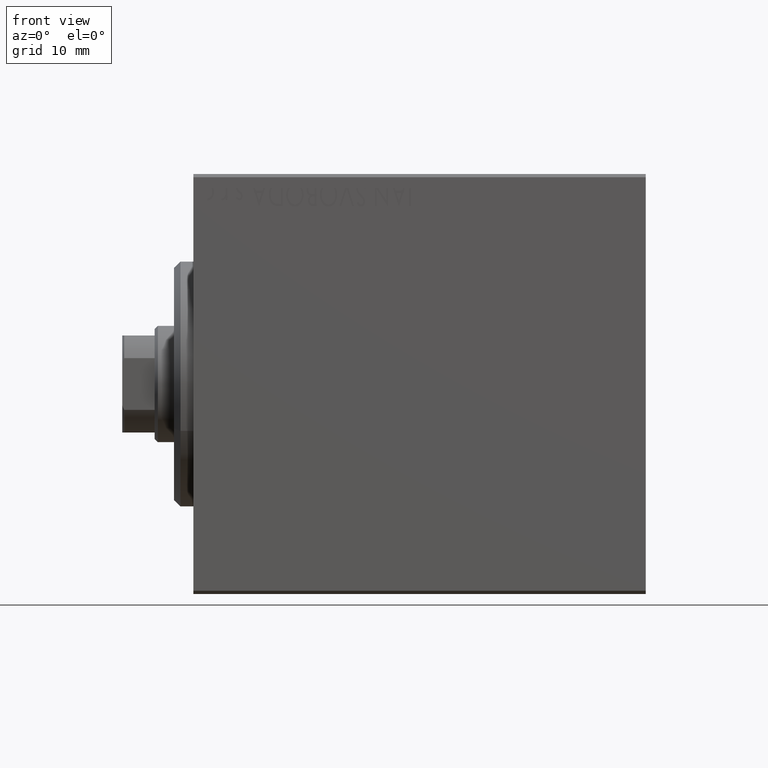
[diagram: clean part render]
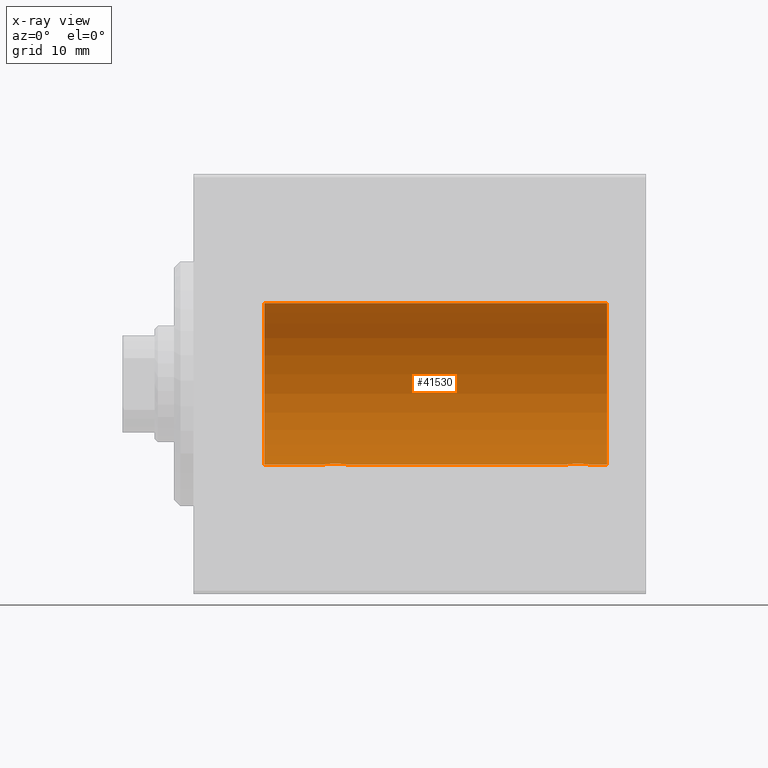
[diagram: x-ray — body ghosted, one internal face saturated and labeled with its STEP entity id]
A machine part, front view, then the same camera in x-ray: the body is ghosted and one INTERNAL B-rep face — a face not visible from any outside direction — is saturated and labeled: STEP entity #41530.
In plain terms, the highlighted cylindrical surface (partial cylindrical patch) has radius 12.5 mm, axis along (-1, -0, -0).
Its self-contained STEP definition (entity closure, byte-faithful):
#27 = ORIENTED_EDGE ( 'NONE', *, *, #33152, .F. ) ;
#351 = CARTESIAN_POINT ( 'NONE',  ( 22.88656313533016373, 1.797558627508998086, -12.37018026341338839 ) ) ;
#1009 = CARTESIAN_POINT ( 'NONE',  ( 23.98690384766256400, 0.2633501011236120681, -12.49788564268284041 ) ) ;
#1230 = CARTESIAN_POINT ( 'NONE',  ( 19.99999999999999645, 0.1323736289504319763, -12.50000000000000000 ) ) ;
#1323 = AXIS2_PLACEMENT_3D ( 'NONE', #29177, #42743, #19380 ) ;
#2418 = CARTESIAN_POINT ( 'NONE',  ( 61.00733550364321900, 1.321095788880535915, -12.43034574091278088 ) ) ;
#2854 = CARTESIAN_POINT ( 'NONE',  ( 57.60252270298195043, 0.6455696738844883820, -12.48390768591463384 ) ) ;
#2963 = DIRECTION ( 'NONE',  ( -1.000000000000000000, -0.000000000000000000, -0.000000000000000000 ) ) ;
#3074 = CARTESIAN_POINT ( 'NONE',  ( 60.01937350851554243, 1.935814255713572019, -12.34922241902462758 ) ) ;
#3293 = CARTESIAN_POINT ( 'NONE',  ( 57.90963319990594727, 1.219754986802277896, -12.44082361696003680 ) ) ;
#3609 = VERTEX_POINT ( 'NONE', #27414 ) ;
#3684 = CARTESIAN_POINT ( 'NONE',  ( 23.50733550364322255, 1.321095788880538136, -12.43034574091277911 ) ) ;
#4118 = CARTESIAN_POINT ( 'NONE',  ( 23.58991408680628155, 1.220297236145721609, -12.44076681548080288 ) ) ;
#4565 = CARTESIAN_POINT ( 'NONE',  ( 20.01301208516349206, 0.2624928479599882847, -12.49789934882883458 ) ) ;
#5740 = CARTESIAN_POINT ( 'NONE',  ( 60.71980790594580668, 1.590288205413971090, -12.39864157855465088 ) ) ;
#5960 = CARTESIAN_POINT ( 'NONE',  ( 61.08991408680628155, 1.220297236145721387, -12.44076681548080110 ) ) ;
#6761 = LINE ( 'NONE', #20339, #25268 ) ;
#7171 = CARTESIAN_POINT ( 'NONE',  ( 57.50000000000000000, -7.533308568696040923E-15, -12.50000000000000000 ) ) ;
#7668 = CARTESIAN_POINT ( 'NONE',  ( 23.21980790594580313, 1.590288205413975309, -12.39864157855465088 ) ) ;
#7890 = CARTESIAN_POINT ( 'NONE',  ( 22.26269462454597914, 1.986986967296540119, -12.34109209020652465 ) ) ;
#8259 = EDGE_CURVE ( 'NONE', #32218, #21489, #26802, .T. ) ;
#9074 = CARTESIAN_POINT ( 'NONE',  ( 60.14415233770295544, 1.897967064543087723, -12.35517291625591874 ) ) ;
#9293 = CARTESIAN_POINT ( 'NONE',  ( 61.43561774521850083, 0.5201193324741332225, -12.48983485452574982 ) ) ;
#9434 = DIRECTION ( 'NONE',  ( -1.000000000000000000, 0.000000000000000000, 0.000000000000000000 ) ) ;
#9737 = CARTESIAN_POINT ( 'NONE',  ( 57.50000000000000000, -7.533308568696040923E-15, -12.50000000000000000 ) ) ;
#9753 = CIRCLE ( 'NONE', #34639, 12.50000000000000000 ) ;
#9990 = DIRECTION ( 'NONE',  ( -1.000000000000000000, -0.000000000000000000, -0.000000000000000000 ) ) ;
#10559 = CARTESIAN_POINT ( 'NONE',  ( 22.64415233770293412, 1.897967064543090165, -12.35517291625592051 ) ) ;
#12532 = CARTESIAN_POINT ( 'NONE',  ( 10.99999999999999645, 1.530808498934191521E-15, -12.50000000000000000 ) ) ;
#12638 = CARTESIAN_POINT ( 'NONE',  ( 61.48690384766256045, 0.2633501011236106804, -12.49788564268283864 ) ) ;
#12698 = VECTOR ( 'NONE', #20033, 1000.000000000000000 ) ;
#13776 = DIRECTION ( 'NONE',  ( 0.000000000000000000, 0.000000000000000000, 1.000000000000000000 ) ) ;
#13908 = CARTESIAN_POINT ( 'NONE',  ( 20.20300788371381273, 0.8876934327478117615, -12.46903010196599304 ) ) ;
#14129 = CARTESIAN_POINT ( 'NONE',  ( 23.93561774521849728, 0.5201193324741352209, -12.48983485452574982 ) ) ;
#14441 = B_SPLINE_CURVE_WITH_KNOTS ( 'NONE', 3,
 ( #14788, #1230, #4565, #25028, #24807, #13908, #28370, #30827, #18128, #41287, #41933, #38372, #34173, #31052, #7890, #37715, #10559, #351, #34830, #7668, #38590, #3684, #4118, #27493, #17687, #41061, #14129, #1009, #24152, #41503 ),
 .UNSPECIFIED., .F., .F.,
 ( 4, 2, 2, 2, 2, 2, 2, 2, 2, 2, 2, 2, 2, 2, 4 ),
 ( 3.611342868676865251E-19, 0.0003914362731607586585, 0.0007828725463215168833, 0.001174308819482275217, 0.001565745092643033550, 0.002348617638964549999, 0.003131490185286066666, 0.003522926458446830420, 0.003914362731607594174, 0.004305799004768357495, 0.004697235277929121683, 0.005088671551089885003, 0.005480107824250649191, 0.005871544097411412512, 0.006262980370572176700 ),
 .UNSPECIFIED. ) ;
#14788 = CARTESIAN_POINT ( 'NONE',  ( 19.99999999999999645, -3.966047509268588167E-15, -12.50000000000000000 ) ) ;
#15236 = EDGE_CURVE ( 'NONE', #3609, #41414, #6761, .T. ) ;
#15768 = VERTEX_POINT ( 'NONE', #7171 ) ;
#15979 = CARTESIAN_POINT ( 'NONE',  ( 61.23470742397612554, 1.003863686549173462, -12.46009879577771429 ) ) ;
#16353 = EDGE_CURVE ( 'NONE', #15768, #41414, #16756, .T. ) ;
#16415 = CARTESIAN_POINT ( 'NONE',  ( 58.27033506126852558, 1.598680238462363956, -12.39873273758732353 ) ) ;
#16553 = DIRECTION ( 'NONE',  ( -1.000000000000000000, -0.000000000000000000, -0.000000000000000000 ) ) ;
#16756 = B_SPLINE_CURVE_WITH_KNOTS ( 'NONE', 3,
 ( #9737, #20190, #39566, #36450, #2854, #33783, #36885, #3293, #26218, #16415, #22657, #43338, #29991, #19975, #33565, #3074, #9074, #16856, #36227, #5740, #19322, #2418, #5960, #15979, #29557, #43124, #9293, #12638, #39780, #22877 ),
 .UNSPECIFIED., .F., .F.,
 ( 4, 2, 2, 2, 2, 2, 2, 2, 2, 2, 2, 2, 2, 2, 4 ),
 ( 8.524058063799960461E-19, 0.0003914362731607507980, 0.0007828725463215007287, 0.001174308819482250280, 0.001565745092642999723, 0.002348617638964514438, 0.003131490185286029369, 0.003522926458446797027, 0.003914362731607565551, 0.004305799004768333209, 0.004697235277929100866, 0.005088671551089869391, 0.005480107824250637048, 0.005871544097411405573, 0.006262980370572173230 ),
 .UNSPECIFIED. ) ;
#16835 = VERTEX_POINT ( 'NONE', #12532 ) ;
#16856 = CARTESIAN_POINT ( 'NONE',  ( 60.38656313533017084, 1.797558627508995643, -12.37018026341338484 ) ) ;
#17239 = CARTESIAN_POINT ( 'NONE',  ( 24.00000000000000000, 1.530808426277417854E-15, -12.50000000000000000 ) ) ;
#17687 = CARTESIAN_POINT ( 'NONE',  ( 23.79742491916155700, 0.8868029758979399935, -12.46909283808506430 ) ) ;
#18128 = CARTESIAN_POINT ( 'NONE',  ( 20.49398366327207910, 1.322451657002076120, -12.43019346654084956 ) ) ;
#18811 = CARTESIAN_POINT ( 'NONE',  ( 64.00000000000000000, 0.000000000000000000, 12.50000000000000000 ) ) ;
#19236 = VERTEX_POINT ( 'NONE', #32029 ) ;
#19322 = CARTESIAN_POINT ( 'NONE',  ( 60.82102833500698580, 1.507394620545638331, -12.40913174964213184 ) ) ;
#19380 = DIRECTION ( 'NONE',  ( 0.000000000000000000, 0.000000000000000000, 1.000000000000000000 ) ) ;
#19975 = CARTESIAN_POINT ( 'NONE',  ( 59.62992629360267216, 2.000049200055399545, -12.33895470450622867 ) ) ;
#20033 = DIRECTION ( 'NONE',  ( -1.000000000000000000, -0.000000000000000000, -0.000000000000000000 ) ) ;
#20190 = CARTESIAN_POINT ( 'NONE',  ( 57.50000000000002132, 0.1323736289504287567, -12.50000000000000178 ) ) ;
#20339 = CARTESIAN_POINT ( 'NONE',  ( 64.00000000000000000, 1.530808498934191521E-15, -12.50000000000000000 ) ) ;
#20467 = EDGE_CURVE ( 'NONE', #19236, #32508, #14441, .T. ) ;
#21102 = ORIENTED_EDGE ( 'NONE', *, *, #31074, .F. ) ;
#21409 = FACE_OUTER_BOUND ( 'NONE', #30472, .T. ) ;
#21489 = VERTEX_POINT ( 'NONE', #29171 ) ;
#22657 = CARTESIAN_POINT ( 'NONE',  ( 58.49316879552502257, 1.747608771958137241, -12.37764291807175709 ) ) ;
#22877 = CARTESIAN_POINT ( 'NONE',  ( 61.50000000000000711, 1.530808426270318106E-15, -12.50000000000000000 ) ) ;
#23645 = CARTESIAN_POINT ( 'NONE',  ( 61.50000000000000711, 1.530808426270318106E-15, -12.50000000000000000 ) ) ;
#24152 = CARTESIAN_POINT ( 'NONE',  ( 24.00000000000000711, 0.1306394121199392910, -12.50000000000000533 ) ) ;
#24807 = CARTESIAN_POINT ( 'NONE',  ( 20.10252270298193622, 0.6455696738844897142, -12.48390768591463207 ) ) ;
#25028 = CARTESIAN_POINT ( 'NONE',  ( 20.06395648222636652, 0.5184196815546032733, -12.48990118705761532 ) ) ;
#25186 = EDGE_CURVE ( 'NONE', #32218, #3609, #9753, .T. ) ;
#25268 = VECTOR ( 'NONE', #16553, 1000.000000000000000 ) ;
#26218 = CARTESIAN_POINT ( 'NONE',  ( 57.99398366327209686, 1.322451657002070347, -12.43019346654085489 ) ) ;
#26576 = CARTESIAN_POINT ( 'NONE',  ( 64.00000000000000000, 0.000000000000000000, 0.000000000000000000 ) ) ;
#26802 = LINE ( 'NONE', #43925, #32909 ) ;
#27106 = AXIS2_PLACEMENT_3D ( 'NONE', #34036, #9990, #13776 ) ;
#27414 = CARTESIAN_POINT ( 'NONE',  ( 64.00000000000000000, 1.530808498934191521E-15, -12.50000000000000000 ) ) ;
#27493 = CARTESIAN_POINT ( 'NONE',  ( 23.73470742397611843, 1.003863686549172352, -12.46009879577771606 ) ) ;
#28370 = CARTESIAN_POINT ( 'NONE',  ( 20.26446744561862801, 1.002494658017155871, -12.46021263690096958 ) ) ;
#28793 = EDGE_CURVE ( 'NONE', #21489, #16835, #36145, .T. ) ;
#29171 = CARTESIAN_POINT ( 'NONE',  ( 10.99999999999999645, 0.000000000000000000, 12.50000000000000000 ) ) ;
#29177 = CARTESIAN_POINT ( 'NONE',  ( 10.99999999999999645, 0.000000000000000000, 0.000000000000000000 ) ) ;
#29557 = CARTESIAN_POINT ( 'NONE',  ( 61.29742491916157121, 0.8868029758979365518, -12.46909283808506430 ) ) ;
#29991 = CARTESIAN_POINT ( 'NONE',  ( 59.23788193668374902, 1.999901172190674981, -12.33897869807161207 ) ) ;
#30356 = DIRECTION ( 'NONE',  ( 0.000000000000000000, 0.000000000000000000, 1.000000000000000000 ) ) ;
#30472 = EDGE_LOOP ( 'NONE', ( #37358, #41837, #43188, #40274, #27, #32057, #21102, #31822 ) ) ;
#30827 = CARTESIAN_POINT ( 'NONE',  ( 20.40963319990594016, 1.219754986802279451, -12.44082361696003503 ) ) ;
#31052 = CARTESIAN_POINT ( 'NONE',  ( 22.12992629360264729, 2.000049200055402210, -12.33895470450623044 ) ) ;
#31074 = EDGE_CURVE ( 'NONE', #15768, #32508, #37657, .T. ) ;
#31822 = ORIENTED_EDGE ( 'NONE', *, *, #16353, .T. ) ;
#32029 = CARTESIAN_POINT ( 'NONE',  ( 19.99999999999999645, -3.966047509268588167E-15, -12.50000000000000000 ) ) ;
#32057 = ORIENTED_EDGE ( 'NONE', *, *, #20467, .T. ) ;
#32218 = VERTEX_POINT ( 'NONE', #18811 ) ;
#32508 = VERTEX_POINT ( 'NONE', #17239 ) ;
#32909 = VECTOR ( 'NONE', #37026, 1000.000000000000000 ) ;
#33152 = EDGE_CURVE ( 'NONE', #19236, #16835, #40051, .T. ) ;
#33565 = CARTESIAN_POINT ( 'NONE',  ( 59.76269462454598624, 1.986986967296537232, -12.34109209020652465 ) ) ;
#33783 = CARTESIAN_POINT ( 'NONE',  ( 57.70300788371382339, 0.8876934327478099851, -12.46903010196599659 ) ) ;
#34036 = CARTESIAN_POINT ( 'NONE',  ( 64.00000000000000000, 0.000000000000000000, 0.000000000000000000 ) ) ;
#34173 = CARTESIAN_POINT ( 'NONE',  ( 21.73788193668374902, 1.999901172190678533, -12.33897869807161385 ) ) ;
#34639 = AXIS2_PLACEMENT_3D ( 'NONE', #26576, #9434, #30356 ) ;
#34830 = CARTESIAN_POINT ( 'NONE',  ( 23.00335814299181436, 1.734998657226765939, -12.37922086519035325 ) ) ;
#36145 = CIRCLE ( 'NONE', #1323, 12.50000000000000000 ) ;
#36227 = CARTESIAN_POINT ( 'NONE',  ( 60.50335814299182857, 1.734998657226762608, -12.37922086519035680 ) ) ;
#36450 = CARTESIAN_POINT ( 'NONE',  ( 57.56395648222637362, 0.5184196815546008308, -12.48990118705761354 ) ) ;
#36885 = CARTESIAN_POINT ( 'NONE',  ( 57.76446744561862801, 1.002494658017153872, -12.46021263690097136 ) ) ;
#36988 = CARTESIAN_POINT ( 'NONE',  ( 64.00000000000000000, 1.530808498934191521E-15, -12.50000000000000000 ) ) ;
#37026 = DIRECTION ( 'NONE',  ( -1.000000000000000000, -0.000000000000000000, -0.000000000000000000 ) ) ;
#37358 = ORIENTED_EDGE ( 'NONE', *, *, #15236, .F. ) ;
#37614 = VECTOR ( 'NONE', #2963, 1000.000000000000000 ) ;
#37657 = LINE ( 'NONE', #36988, #37614 ) ;
#37715 = CARTESIAN_POINT ( 'NONE',  ( 22.51937350851555308, 1.935814255713574905, -12.34922241902463114 ) ) ;
#38372 = CARTESIAN_POINT ( 'NONE',  ( 21.47436412829510033, 1.947190906025044077, -12.34781876294798053 ) ) ;
#38590 = CARTESIAN_POINT ( 'NONE',  ( 23.32102833500698225, 1.507394620545640773, -12.40913174964213184 ) ) ;
#39566 = CARTESIAN_POINT ( 'NONE',  ( 57.51301208516348851, 0.2624928479599860642, -12.49789934882883458 ) ) ;
#39780 = CARTESIAN_POINT ( 'NONE',  ( 61.50000000000001421, 0.1306394121199392355, -12.50000000000000178 ) ) ;
#40051 = LINE ( 'NONE', #43609, #12698 ) ;
#40274 = ORIENTED_EDGE ( 'NONE', *, *, #28793, .T. ) ;
#41061 = CARTESIAN_POINT ( 'NONE',  ( 23.89773031393658087, 0.6448065707253023415, -12.48394649977302073 ) ) ;
#41224 = CYLINDRICAL_SURFACE ( 'NONE', #27106, 12.50000000000000000 ) ;
#41287 = CARTESIAN_POINT ( 'NONE',  ( 20.77033506126850426, 1.598680238462369951, -12.39873273758732175 ) ) ;
#41414 = VERTEX_POINT ( 'NONE', #23645 ) ;
#41503 = CARTESIAN_POINT ( 'NONE',  ( 24.00000000000000000, 1.530808426277417854E-15, -12.50000000000000000 ) ) ;
#41530 = ADVANCED_FACE ( 'NONE', ( #21409 ), #41224, .F. ) ;
#41837 = ORIENTED_EDGE ( 'NONE', *, *, #25186, .F. ) ;
#41933 = CARTESIAN_POINT ( 'NONE',  ( 20.99316879552500481, 1.747608771958139906, -12.37764291807175354 ) ) ;
#42743 = DIRECTION ( 'NONE',  ( -1.000000000000000000, 0.000000000000000000, 0.000000000000000000 ) ) ;
#43124 = CARTESIAN_POINT ( 'NONE',  ( 61.39773031393659863, 0.6448065707252995660, -12.48394649977301718 ) ) ;
#43188 = ORIENTED_EDGE ( 'NONE', *, *, #8259, .T. ) ;
#43338 = CARTESIAN_POINT ( 'NONE',  ( 58.97436412829508612, 1.947190906025040746, -12.34781876294798231 ) ) ;
#43609 = CARTESIAN_POINT ( 'NONE',  ( 64.00000000000000000, 1.530808498934191521E-15, -12.50000000000000000 ) ) ;
#43925 = CARTESIAN_POINT ( 'NONE',  ( 64.00000000000000000, 0.000000000000000000, 12.50000000000000000 ) ) ;